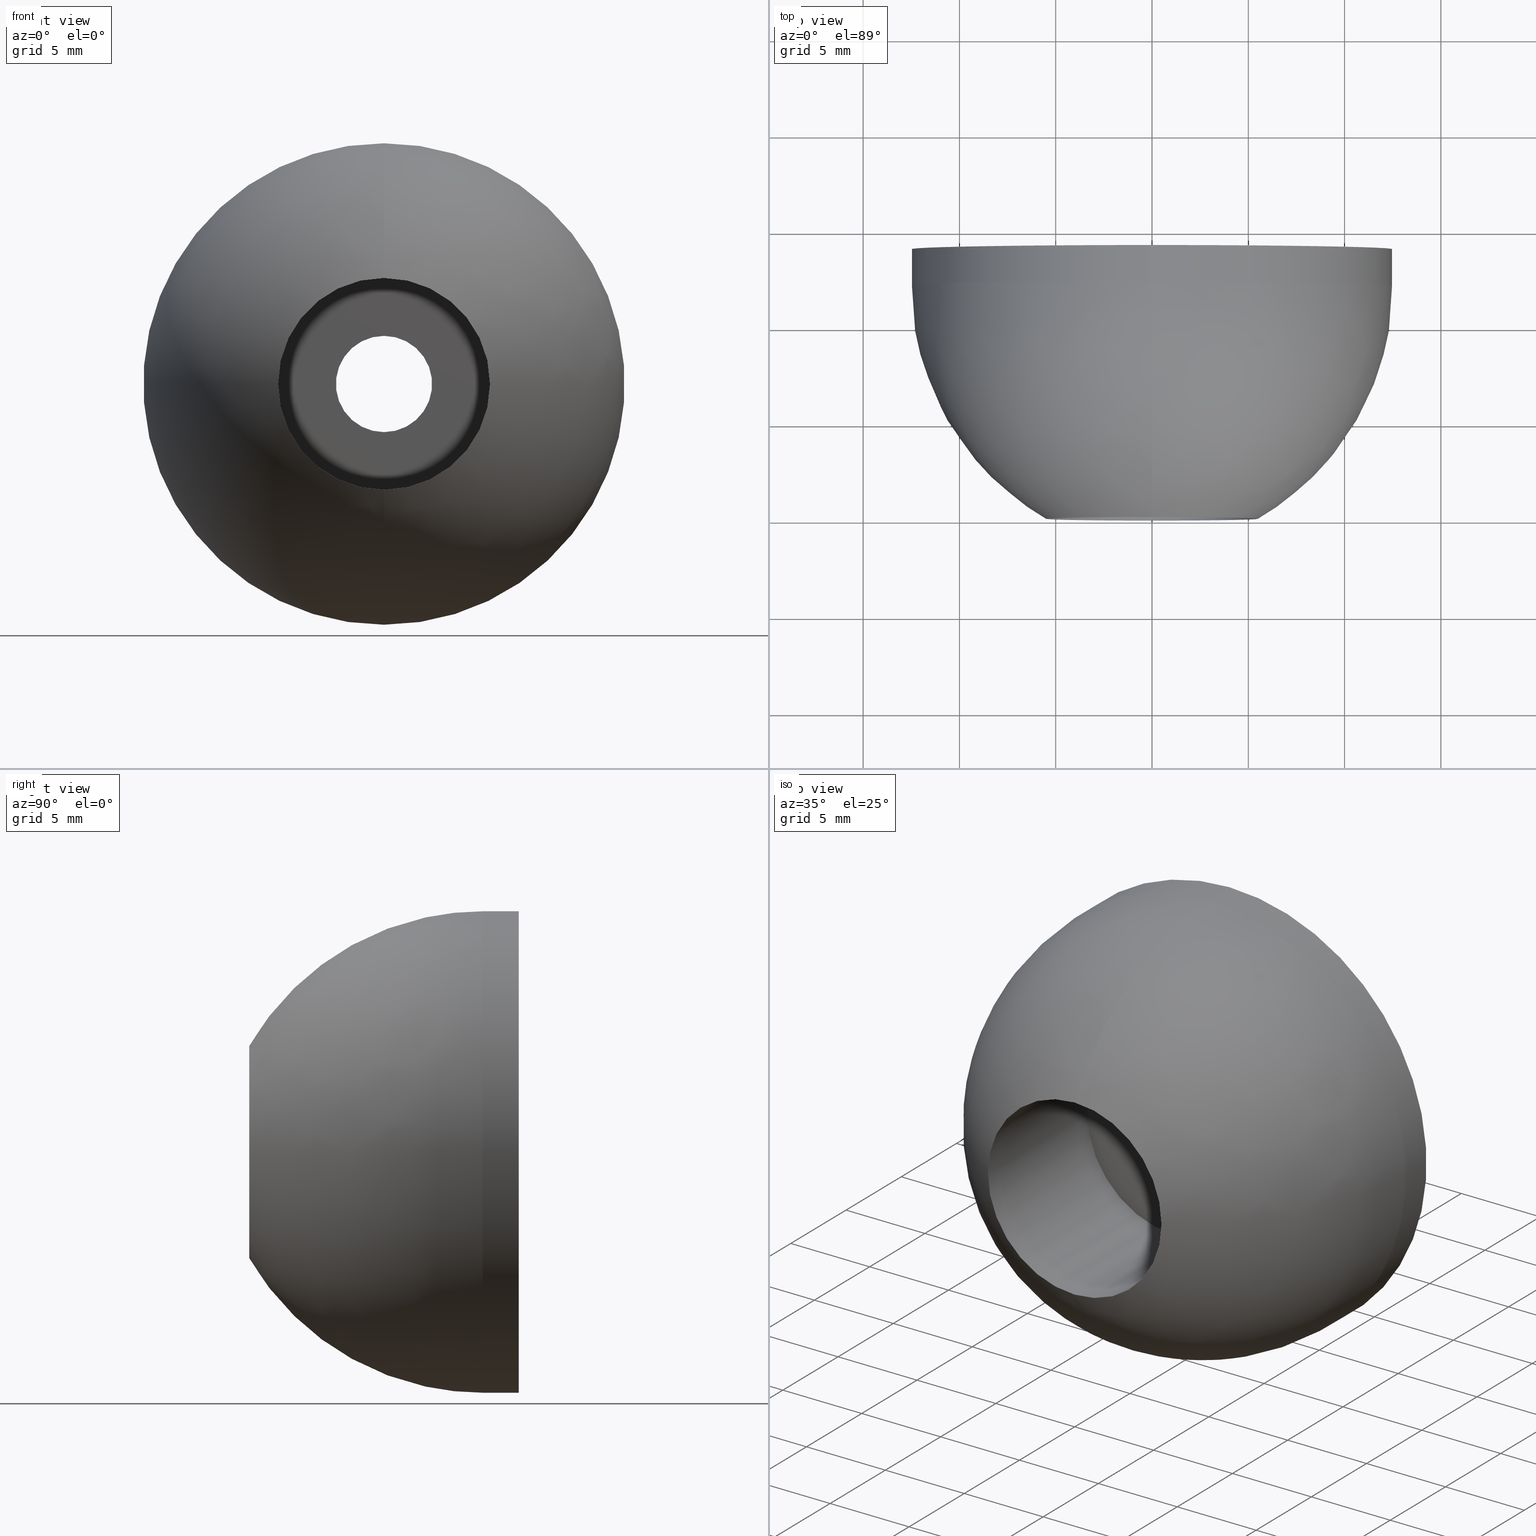
[diagram: canonical four-view strip — front | top / right | iso, engineering-drawing reading convention]
A machine part, canonical four-view strip (front | top / right | iso — engineering-drawing reading convention). The complete STEP part file that produces these views, byte-faithful:
ISO-10303-21;
HEADER;

FILE_DESCRIPTION( (''), '2;1');
FILE_NAME ('PC50.8404.TM_SK_2519_14057.stp','2019-12-20T12:49:41',(''),(''),'spGate 15.6.1','','');

FILE_SCHEMA (('AUTOMOTIVE_DESIGN'));
ENDSEC;

DATA;
#10=(GEOMETRIC_REPRESENTATION_CONTEXT(3) GLOBAL_UNCERTAINTY_ASSIGNED_CONTEXT((#12)) GLOBAL_UNIT_ASSIGNED_CONTEXT((#13,#14,#15)) REPRESENTATION_CONTEXT('ID1','3D'));
#12=UNCERTAINTY_MEASURE_WITH_UNIT(LENGTH_MEASURE(0.01),#16,'DISTANCE_ACCURACY_VALUE','Maximum model space distance between geometric entities at asserted connectivities');
#13=(NAMED_UNIT(*) SI_UNIT($,.STERADIAN.) SOLID_ANGLE_UNIT());
#14=(CONVERSION_BASED_UNIT('DEGREE',#35) NAMED_UNIT(#36) PLANE_ANGLE_UNIT());
#15=(LENGTH_UNIT() NAMED_UNIT(*) SI_UNIT(.MILLI.,.METRE.));
#16=(LENGTH_UNIT() NAMED_UNIT(*) SI_UNIT(.MILLI.,.METRE.));
#17=AXIS2_PLACEMENT_3D('',#38,#39,#40);
#18=AXIS2_PLACEMENT_3D('',#41,#42,#43);
#19=PRODUCT_DEFINITION('','',#48,#49);
#20=AXIS2_PLACEMENT_3D('',#50,#51,#52);
#21=AXIS2_PLACEMENT_3D('',#53,#54,#55);
#22=SHAPE_REPRESENTATION('Assembly',(#18,#20,#21),#10);
#23=AXIS2_PLACEMENT_3D('',#58,#59,#60);
#24=PRODUCT_DEFINITION('','',#65,#66);
#25=SHAPE_REPRESENTATION('rubber foot',(#23),#10);
#26=ITEM_DEFINED_TRANSFORMATION('','',#20,#23);
#27=(REPRESENTATION_RELATIONSHIP('','',#22,#25) REPRESENTATION_RELATIONSHIP_WITH_TRANSFORMATION(#26) SHAPE_REPRESENTATION_RELATIONSHIP());
#29=AXIS2_PLACEMENT_3D('',#73,#74,#75);
#30=PRODUCT_DEFINITION('','',#80,#81);
#31=SHAPE_REPRESENTATION('washer',(#29),#10);
#32=ITEM_DEFINED_TRANSFORMATION('','',#21,#29);
#33=(REPRESENTATION_RELATIONSHIP('','',#22,#31) REPRESENTATION_RELATIONSHIP_WITH_TRANSFORMATION(#32) SHAPE_REPRESENTATION_RELATIONSHIP());
#35=PLANE_ANGLE_MEASURE_WITH_UNIT(PLANE_ANGLE_MEASURE(0.01745329252),#37);
#36=DIMENSIONAL_EXPONENTS(0.0,0.0,0.0,0.0,0.0,0.0,0.0);
#37=(NAMED_UNIT(*) PLANE_ANGLE_UNIT() SI_UNIT($,.RADIAN.));
#38=CARTESIAN_POINT('',(0.00000000000E+000,0.00000000000E+000,0.00000000000E+000));
#39=DIRECTION('',(0.00000000000E+000,0.00000000000E+000,1.00000000000E+000));
#40=DIRECTION('',(1.00000000000E+000,0.00000000000E+000,0.00000000000E+000));
#41=CARTESIAN_POINT('',(0.00000000000E+000,0.00000000000E+000,0.00000000000E+000));
#42=DIRECTION('',(0.00000000000E+000,0.00000000000E+000,1.00000000000E+000));
#43=DIRECTION('',(1.00000000000E+000,0.00000000000E+000,0.00000000000E+000));
#44=APPLICATION_CONTEXT('configuration controlled 3d designs of mechanical parts and assemblies');
#45=APPLICATION_PROTOCOL_DEFINITION('International Standard','automotive_design',1999,#44);
#46=PRODUCT_CONTEXT('',#44,'');
#47=PRODUCT('Assembly','Assembly','',(#46));
#48=PRODUCT_DEFINITION_FORMATION_WITH_SPECIFIED_SOURCE('','',#47,.NOT_KNOWN.);
#49=PRODUCT_DEFINITION_CONTEXT('design',#44,'');
#50=CARTESIAN_POINT('',(0.00000000000E+000,0.00000000000E+000,0.00000000000E+000));
#51=DIRECTION('',(0.00000000000E+000,0.00000000000E+000,1.00000000000E+000));
#52=DIRECTION('',(1.00000000000E+000,0.00000000000E+000,0.00000000000E+000));
#53=CARTESIAN_POINT('',(0.00000000000E+000,0.00000000000E+000,0.00000000000E+000));
#54=DIRECTION('',(0.00000000000E+000,0.00000000000E+000,1.00000000000E+000));
#55=DIRECTION('',(1.00000000000E+000,0.00000000000E+000,0.00000000000E+000));
#56=PRODUCT_DEFINITION_SHAPE('','',#19);
#57=SHAPE_DEFINITION_REPRESENTATION(#56,#22);
#58=CARTESIAN_POINT('',(0.00000000000E+000,0.00000000000E+000,0.00000000000E+000));
#59=DIRECTION('',(0.00000000000E+000,0.00000000000E+000,1.00000000000E+000));
#60=DIRECTION('',(1.00000000000E+000,0.00000000000E+000,0.00000000000E+000));
#61=APPLICATION_CONTEXT('configuration controlled 3d designs of mechanical parts and assemblies');
#62=APPLICATION_PROTOCOL_DEFINITION('International Standard','automotive_design',1999,#61);
#63=PRODUCT_CONTEXT('',#61,'');
#64=PRODUCT('rubber foot','rubber foot','',(#63));
#65=PRODUCT_DEFINITION_FORMATION_WITH_SPECIFIED_SOURCE('','',#64,.NOT_KNOWN.);
#66=PRODUCT_DEFINITION_CONTEXT('design',#61,'');
#67=PRODUCT_DEFINITION_SHAPE('','',#24);
#68=SHAPE_DEFINITION_REPRESENTATION(#67,#25);
#69=NEXT_ASSEMBLY_USAGE_OCCURRENCE('','','',#19,#24,'');
#70=PRODUCT_DEFINITION_SHAPE('','',#69);
#71=CONTEXT_DEPENDENT_SHAPE_REPRESENTATION(#27,#70);
#73=CARTESIAN_POINT('',(0.00000000000E+000,0.00000000000E+000,0.00000000000E+000));
#74=DIRECTION('',(0.00000000000E+000,0.00000000000E+000,1.00000000000E+000));
#75=DIRECTION('',(1.00000000000E+000,0.00000000000E+000,0.00000000000E+000));
#76=APPLICATION_CONTEXT('configuration controlled 3d designs of mechanical parts and assemblies');
#77=APPLICATION_PROTOCOL_DEFINITION('International Standard','automotive_design',1999,#76);
#78=PRODUCT_CONTEXT('',#76,'');
#79=PRODUCT('washer','washer','',(#78));
#80=PRODUCT_DEFINITION_FORMATION_WITH_SPECIFIED_SOURCE('','',#79,.NOT_KNOWN.);
#81=PRODUCT_DEFINITION_CONTEXT('design',#76,'');
#82=PRODUCT_DEFINITION_SHAPE('','',#30);
#83=SHAPE_DEFINITION_REPRESENTATION(#82,#31);
#84=NEXT_ASSEMBLY_USAGE_OCCURRENCE('','','',#19,#30,'');
#85=PRODUCT_DEFINITION_SHAPE('','',#84);
#86=CONTEXT_DEPENDENT_SHAPE_REPRESENTATION(#33,#85);
#88=SHAPE_REPRESENTATION_RELATIONSHIP('','',#25,#91);
#89=SHAPE_REPRESENTATION_RELATIONSHIP('','',#31,#93);
#90=MANIFOLD_SOLID_BREP('rubber foot',#94);
#91=ADVANCED_BREP_SHAPE_REPRESENTATION('rubber foot',(#90),#10);
#92=MANIFOLD_SOLID_BREP('washer',#103);
#93=ADVANCED_BREP_SHAPE_REPRESENTATION('washer',(#92),#10);
#94=CLOSED_SHELL('',(#112,#113,#114,#115,#116,#117,#118,#119,#120,#121,#122,#123,#124));
#95=COLOUR_RGB('',0.00000000000E+000,0.00000000000E+000,0.00000000000E+000);
#96=FILL_AREA_STYLE_COLOUR('',#95);
#97=FILL_AREA_STYLE('',(#96));
#98=SURFACE_STYLE_FILL_AREA(#97);
#99=SURFACE_SIDE_STYLE('',(#98));
#100=SURFACE_STYLE_USAGE(.BOTH.,#99);
#101=PRESENTATION_STYLE_ASSIGNMENT((#100));
#102=STYLED_ITEM('',(#101),#90);
#103=CLOSED_SHELL('',(#125,#126,#127,#128,#129,#130));
#104=COLOUR_RGB('',0.00000000000E+000,0.00000000000E+000,0.00000000000E+000);
#105=FILL_AREA_STYLE_COLOUR('',#104);
#106=FILL_AREA_STYLE('',(#105));
#107=SURFACE_STYLE_FILL_AREA(#106);
#108=SURFACE_SIDE_STYLE('',(#107));
#109=SURFACE_STYLE_USAGE(.BOTH.,#108);
#110=PRESENTATION_STYLE_ASSIGNMENT((#109));
#111=STYLED_ITEM('',(#110),#92);
#112=ADVANCED_FACE('',(#132,#133),#131,.F.);
#113=ADVANCED_FACE('',(#143,#144),#142,.F.);
#114=ADVANCED_FACE('',(#154,#155),#153,.F.);
#115=ADVANCED_FACE('',(#165),#164,.T.);
#116=ADVANCED_FACE('',(#175),#174,.T.);
#117=ADVANCED_FACE('',(#185),#184,.T.);
#118=ADVANCED_FACE('',(#195),#194,.T.);
#119=ADVANCED_FACE('',(#205),#204,.F.);
#120=ADVANCED_FACE('',(#215),#214,.F.);
#121=ADVANCED_FACE('',(#225),#224,.F.);
#122=ADVANCED_FACE('',(#235),#234,.F.);
#123=ADVANCED_FACE('',(#245),#244,.F.);
#124=ADVANCED_FACE('',(#255),#254,.F.);
#125=ADVANCED_FACE('',(#265,#266),#264,.F.);
#126=ADVANCED_FACE('',(#276,#277),#275,.T.);
#127=ADVANCED_FACE('',(#287),#286,.T.);
#128=ADVANCED_FACE('',(#297),#296,.T.);
#129=ADVANCED_FACE('',(#307),#306,.F.);
#130=ADVANCED_FACE('',(#317),#316,.F.);
#131=PLANE('',#329);
#132=FACE_OUTER_BOUND('',#330,.T.);
#133=FACE_BOUND('',#331,.T.);
#134=COLOUR_RGB('',1.00000000000E+000,1.00000000000E+000,1.00000000000E+000);
#135=FILL_AREA_STYLE_COLOUR('',#134);
#136=FILL_AREA_STYLE('',(#135));
#137=SURFACE_STYLE_FILL_AREA(#136);
#138=SURFACE_SIDE_STYLE('',(#137));
#139=SURFACE_STYLE_USAGE(.BOTH.,#138);
#140=PRESENTATION_STYLE_ASSIGNMENT((#139));
#141=STYLED_ITEM('',(#140),#112);
#142=PLANE('',#335);
#143=FACE_OUTER_BOUND('',#336,.T.);
#144=FACE_BOUND('',#337,.T.);
#145=COLOUR_RGB('',1.00000000000E+000,1.00000000000E+000,1.00000000000E+000);
#146=FILL_AREA_STYLE_COLOUR('',#145);
#147=FILL_AREA_STYLE('',(#146));
#148=SURFACE_STYLE_FILL_AREA(#147);
#149=SURFACE_SIDE_STYLE('',(#148));
#150=SURFACE_STYLE_USAGE(.BOTH.,#149);
#151=PRESENTATION_STYLE_ASSIGNMENT((#150));
#152=STYLED_ITEM('',(#151),#113);
#153=PLANE('',#341);
#154=FACE_OUTER_BOUND('',#342,.T.);
#155=FACE_BOUND('',#343,.T.);
#156=COLOUR_RGB('',1.00000000000E+000,1.00000000000E+000,1.00000000000E+000);
#157=FILL_AREA_STYLE_COLOUR('',#156);
#158=FILL_AREA_STYLE('',(#157));
#159=SURFACE_STYLE_FILL_AREA(#158);
#160=SURFACE_SIDE_STYLE('',(#159));
#161=SURFACE_STYLE_USAGE(.BOTH.,#160);
#162=PRESENTATION_STYLE_ASSIGNMENT((#161));
#163=STYLED_ITEM('',(#162),#114);
#164=CYLINDRICAL_SURFACE('',#347,1.25000000000E+001);
#165=FACE_OUTER_BOUND('',#348,.T.);
#166=COLOUR_RGB('',1.00000000000E+000,1.00000000000E+000,1.00000000000E+000);
#167=FILL_AREA_STYLE_COLOUR('',#166);
#168=FILL_AREA_STYLE('',(#167));
#169=SURFACE_STYLE_FILL_AREA(#168);
#170=SURFACE_SIDE_STYLE('',(#169));
#171=SURFACE_STYLE_USAGE(.BOTH.,#170);
#172=PRESENTATION_STYLE_ASSIGNMENT((#171));
#173=STYLED_ITEM('',(#172),#115);
#174=CYLINDRICAL_SURFACE('',#352,1.25000000000E+001);
#175=FACE_OUTER_BOUND('',#353,.T.);
#176=COLOUR_RGB('',1.00000000000E+000,1.00000000000E+000,1.00000000000E+000);
#177=FILL_AREA_STYLE_COLOUR('',#176);
#178=FILL_AREA_STYLE('',(#177));
#179=SURFACE_STYLE_FILL_AREA(#178);
#180=SURFACE_SIDE_STYLE('',(#179));
#181=SURFACE_STYLE_USAGE(.BOTH.,#180);
#182=PRESENTATION_STYLE_ASSIGNMENT((#181));
#183=STYLED_ITEM('',(#182),#116);
#184=( BOUNDED_SURFACE() B_SPLINE_SURFACE( 2,2,((#354,#355,#356,#357,#358),(#359,#360,#361,#362,#363),(#364,#365,#366,#367,#368)), .UNSPECIFIED.,.F.,.F.,.F.) B_SPLINE_SURFACE_WITH_KNOTS((3,3),(3,2,3),(-1.04719755120E+000,0.00000000000E+000),(0.00000000000E+000,1.57079632679E+000,3.14159265359E+000), .UNSPECIFIED. ) GEOMETRIC_REPRESENTATION_ITEM() RATIONAL_B_SPLINE_SURFACE(((1.00000000000E+000,7.07106781187E-001,1.00000000000E+000,7.07106781187E-001,1.00000000000E+000),(8.66025403784E-001,6.12372435696E-001,8.66025403784E-001,6.12372435696E-001,8.66025403784E-001),(1.00000000000E+000,7.07106781187E-001,1.00000000000E+000,7.07106781187E-001,1.00000000000E+000))) REPRESENTATION_ITEM('') SURFACE() );
#185=FACE_OUTER_BOUND('',#369,.T.);
#186=COLOUR_RGB('',1.00000000000E+000,1.00000000000E+000,1.00000000000E+000);
#187=FILL_AREA_STYLE_COLOUR('',#186);
#188=FILL_AREA_STYLE('',(#187));
#189=SURFACE_STYLE_FILL_AREA(#188);
#190=SURFACE_SIDE_STYLE('',(#189));
#191=SURFACE_STYLE_USAGE(.BOTH.,#190);
#192=PRESENTATION_STYLE_ASSIGNMENT((#191));
#193=STYLED_ITEM('',(#192),#117);
#194=( BOUNDED_SURFACE() B_SPLINE_SURFACE( 2,2,((#370,#371,#372,#373,#374),(#375,#376,#377,#378,#379),(#380,#381,#382,#383,#384)), .UNSPECIFIED.,.F.,.F.,.F.) B_SPLINE_SURFACE_WITH_KNOTS((3,3),(3,2,3),(-1.04719755120E+000,0.00000000000E+000),(3.14159265359E+000,4.71238898038E+000,6.28318530718E+000), .UNSPECIFIED. ) GEOMETRIC_REPRESENTATION_ITEM() RATIONAL_B_SPLINE_SURFACE(((1.00000000000E+000,7.07106781187E-001,1.00000000000E+000,7.07106781187E-001,1.00000000000E+000),(8.66025403784E-001,6.12372435696E-001,8.66025403784E-001,6.12372435696E-001,8.66025403784E-001),(1.00000000000E+000,7.07106781187E-001,1.00000000000E+000,7.07106781187E-001,1.00000000000E+000))) REPRESENTATION_ITEM('') SURFACE() );
#195=FACE_OUTER_BOUND('',#385,.T.);
#196=COLOUR_RGB('',1.00000000000E+000,1.00000000000E+000,1.00000000000E+000);
#197=FILL_AREA_STYLE_COLOUR('',#196);
#198=FILL_AREA_STYLE('',(#197));
#199=SURFACE_STYLE_FILL_AREA(#198);
#200=SURFACE_SIDE_STYLE('',(#199));
#201=SURFACE_STYLE_USAGE(.BOTH.,#200);
#202=PRESENTATION_STYLE_ASSIGNMENT((#201));
#203=STYLED_ITEM('',(#202),#118);
#204=CYLINDRICAL_SURFACE('',#389,2.50000000000E+000);
#205=FACE_OUTER_BOUND('',#390,.T.);
#206=COLOUR_RGB('',1.00000000000E+000,1.00000000000E+000,1.00000000000E+000);
#207=FILL_AREA_STYLE_COLOUR('',#206);
#208=FILL_AREA_STYLE('',(#207));
#209=SURFACE_STYLE_FILL_AREA(#208);
#210=SURFACE_SIDE_STYLE('',(#209));
#211=SURFACE_STYLE_USAGE(.BOTH.,#210);
#212=PRESENTATION_STYLE_ASSIGNMENT((#211));
#213=STYLED_ITEM('',(#212),#119);
#214=CYLINDRICAL_SURFACE('',#394,2.50000000000E+000);
#215=FACE_OUTER_BOUND('',#395,.T.);
#216=COLOUR_RGB('',1.00000000000E+000,1.00000000000E+000,1.00000000000E+000);
#217=FILL_AREA_STYLE_COLOUR('',#216);
#218=FILL_AREA_STYLE('',(#217));
#219=SURFACE_STYLE_FILL_AREA(#218);
#220=SURFACE_SIDE_STYLE('',(#219));
#221=SURFACE_STYLE_USAGE(.BOTH.,#220);
#222=PRESENTATION_STYLE_ASSIGNMENT((#221));
#223=STYLED_ITEM('',(#222),#120);
#224=CYLINDRICAL_SURFACE('',#399,7.00000000000E+000);
#225=FACE_OUTER_BOUND('',#400,.T.);
#226=COLOUR_RGB('',1.00000000000E+000,1.00000000000E+000,1.00000000000E+000);
#227=FILL_AREA_STYLE_COLOUR('',#226);
#228=FILL_AREA_STYLE('',(#227));
#229=SURFACE_STYLE_FILL_AREA(#228);
#230=SURFACE_SIDE_STYLE('',(#229));
#231=SURFACE_STYLE_USAGE(.BOTH.,#230);
#232=PRESENTATION_STYLE_ASSIGNMENT((#231));
#233=STYLED_ITEM('',(#232),#121);
#234=CYLINDRICAL_SURFACE('',#404,7.00000000000E+000);
#235=FACE_OUTER_BOUND('',#405,.T.);
#236=COLOUR_RGB('',1.00000000000E+000,1.00000000000E+000,1.00000000000E+000);
#237=FILL_AREA_STYLE_COLOUR('',#236);
#238=FILL_AREA_STYLE('',(#237));
#239=SURFACE_STYLE_FILL_AREA(#238);
#240=SURFACE_SIDE_STYLE('',(#239));
#241=SURFACE_STYLE_USAGE(.BOTH.,#240);
#242=PRESENTATION_STYLE_ASSIGNMENT((#241));
#243=STYLED_ITEM('',(#242),#122);
#244=CYLINDRICAL_SURFACE('',#409,5.50000000000E+000);
#245=FACE_OUTER_BOUND('',#410,.T.);
#246=COLOUR_RGB('',1.00000000000E+000,1.00000000000E+000,1.00000000000E+000);
#247=FILL_AREA_STYLE_COLOUR('',#246);
#248=FILL_AREA_STYLE('',(#247));
#249=SURFACE_STYLE_FILL_AREA(#248);
#250=SURFACE_SIDE_STYLE('',(#249));
#251=SURFACE_STYLE_USAGE(.BOTH.,#250);
#252=PRESENTATION_STYLE_ASSIGNMENT((#251));
#253=STYLED_ITEM('',(#252),#123);
#254=CYLINDRICAL_SURFACE('',#414,5.50000000000E+000);
#255=FACE_OUTER_BOUND('',#415,.T.);
#256=COLOUR_RGB('',1.00000000000E+000,1.00000000000E+000,1.00000000000E+000);
#257=FILL_AREA_STYLE_COLOUR('',#256);
#258=FILL_AREA_STYLE('',(#257));
#259=SURFACE_STYLE_FILL_AREA(#258);
#260=SURFACE_SIDE_STYLE('',(#259));
#261=SURFACE_STYLE_USAGE(.BOTH.,#260);
#262=PRESENTATION_STYLE_ASSIGNMENT((#261));
#263=STYLED_ITEM('',(#262),#124);
#264=PLANE('',#419);
#265=FACE_OUTER_BOUND('',#420,.T.);
#266=FACE_BOUND('',#421,.T.);
#267=COLOUR_RGB('',1.00000000000E+000,1.00000000000E+000,1.00000000000E+000);
#268=FILL_AREA_STYLE_COLOUR('',#267);
#269=FILL_AREA_STYLE('',(#268));
#270=SURFACE_STYLE_FILL_AREA(#269);
#271=SURFACE_SIDE_STYLE('',(#270));
#272=SURFACE_STYLE_USAGE(.BOTH.,#271);
#273=PRESENTATION_STYLE_ASSIGNMENT((#272));
#274=STYLED_ITEM('',(#273),#125);
#275=PLANE('',#425);
#276=FACE_OUTER_BOUND('',#426,.T.);
#277=FACE_BOUND('',#427,.T.);
#278=COLOUR_RGB('',1.00000000000E+000,1.00000000000E+000,1.00000000000E+000);
#279=FILL_AREA_STYLE_COLOUR('',#278);
#280=FILL_AREA_STYLE('',(#279));
#281=SURFACE_STYLE_FILL_AREA(#280);
#282=SURFACE_SIDE_STYLE('',(#281));
#283=SURFACE_STYLE_USAGE(.BOTH.,#282);
#284=PRESENTATION_STYLE_ASSIGNMENT((#283));
#285=STYLED_ITEM('',(#284),#126);
#286=CYLINDRICAL_SURFACE('',#431,7.00000000000E+000);
#287=FACE_OUTER_BOUND('',#432,.T.);
#288=COLOUR_RGB('',1.00000000000E+000,1.00000000000E+000,1.00000000000E+000);
#289=FILL_AREA_STYLE_COLOUR('',#288);
#290=FILL_AREA_STYLE('',(#289));
#291=SURFACE_STYLE_FILL_AREA(#290);
#292=SURFACE_SIDE_STYLE('',(#291));
#293=SURFACE_STYLE_USAGE(.BOTH.,#292);
#294=PRESENTATION_STYLE_ASSIGNMENT((#293));
#295=STYLED_ITEM('',(#294),#127);
#296=CYLINDRICAL_SURFACE('',#436,7.00000000000E+000);
#297=FACE_OUTER_BOUND('',#437,.T.);
#298=COLOUR_RGB('',1.00000000000E+000,1.00000000000E+000,1.00000000000E+000);
#299=FILL_AREA_STYLE_COLOUR('',#298);
#300=FILL_AREA_STYLE('',(#299));
#301=SURFACE_STYLE_FILL_AREA(#300);
#302=SURFACE_SIDE_STYLE('',(#301));
#303=SURFACE_STYLE_USAGE(.BOTH.,#302);
#304=PRESENTATION_STYLE_ASSIGNMENT((#303));
#305=STYLED_ITEM('',(#304),#128);
#306=CYLINDRICAL_SURFACE('',#441,2.50000000000E+000);
#307=FACE_OUTER_BOUND('',#442,.T.);
#308=COLOUR_RGB('',1.00000000000E+000,1.00000000000E+000,1.00000000000E+000);
#309=FILL_AREA_STYLE_COLOUR('',#308);
#310=FILL_AREA_STYLE('',(#309));
#311=SURFACE_STYLE_FILL_AREA(#310);
#312=SURFACE_SIDE_STYLE('',(#311));
#313=SURFACE_STYLE_USAGE(.BOTH.,#312);
#314=PRESENTATION_STYLE_ASSIGNMENT((#313));
#315=STYLED_ITEM('',(#314),#129);
#316=CYLINDRICAL_SURFACE('',#446,2.50000000000E+000);
#317=FACE_OUTER_BOUND('',#447,.T.);
#318=COLOUR_RGB('',1.00000000000E+000,1.00000000000E+000,1.00000000000E+000);
#319=FILL_AREA_STYLE_COLOUR('',#318);
#320=FILL_AREA_STYLE('',(#319));
#321=SURFACE_STYLE_FILL_AREA(#320);
#322=SURFACE_SIDE_STYLE('',(#321));
#323=SURFACE_STYLE_USAGE(.BOTH.,#322);
#324=PRESENTATION_STYLE_ASSIGNMENT((#323));
#325=STYLED_ITEM('',(#324),#130);
#326=CARTESIAN_POINT('',(-1.45492267836E+001,9.80000000000E+000,-1.61000000000E+001));
#327=DIRECTION('',(0.00000000000E+000,1.00000000000E+000,0.00000000000E+000));
#328=DIRECTION('',(0.00000000000E+000,-0.00000000000E+000,1.00000000000E+000));
#329=AXIS2_PLACEMENT_3D('',#326,#327,#328);
#330=EDGE_LOOP('',(#448,#449));
#331=EDGE_LOOP('',(#450,#451));
#332=CARTESIAN_POINT('',(-1.45492267836E+001,9.00000000000E+000,1.61000000000E+001));
#333=DIRECTION('',(0.00000000000E+000,-1.00000000000E+000,0.00000000000E+000));
#334=DIRECTION('',(0.00000000000E+000,0.00000000000E+000,-1.00000000000E+000));
#335=AXIS2_PLACEMENT_3D('',#332,#333,#334);
#336=EDGE_LOOP('',(#452,#453));
#337=EDGE_LOOP('',(#454,#455));
#338=CARTESIAN_POINT('',(-2.59807621135E+001,1.40000000000E+001,2.87500000000E+001));
#339=DIRECTION('',(0.00000000000E+000,-1.00000000000E+000,0.00000000000E+000));
#340=DIRECTION('',(0.00000000000E+000,0.00000000000E+000,-1.00000000000E+000));
#341=AXIS2_PLACEMENT_3D('',#338,#339,#340);
#342=EDGE_LOOP('',(#456,#457));
#343=EDGE_LOOP('',(#458,#459));
#344=CARTESIAN_POINT('',(0.00000000000E+000,1.30621776581E+001,0.00000000000E+000));
#345=DIRECTION('',(0.00000000000E+000,-1.00000000000E+000,-0.00000000000E+000));
#346=DIRECTION('',(1.22464679915E-016,0.00000000000E+000,1.00000000000E+000));
#347=AXIS2_PLACEMENT_3D('',#344,#345,#346);
#348=EDGE_LOOP('',(#460,#461,#462,#463));
#349=CARTESIAN_POINT('',(0.00000000000E+000,1.30621776581E+001,0.00000000000E+000));
#350=DIRECTION('',(0.00000000000E+000,-1.00000000000E+000,-0.00000000000E+000));
#351=DIRECTION('',(1.22464679915E-016,0.00000000000E+000,1.00000000000E+000));
#352=AXIS2_PLACEMENT_3D('',#349,#350,#351);
#353=EDGE_LOOP('',(#464,#465,#466,#467));
#354=CARTESIAN_POINT('',(2.30627420373E-015,5.15143483426E-014,-5.49999999999E+000));
#355=CARTESIAN_POINT('',(5.49999999999E+000,5.15143483426E-014,-5.49999999999E+000));
#356=CARTESIAN_POINT('',(5.49999999999E+000,5.15143483426E-014,-1.06118998138E-015));
#357=CARTESIAN_POINT('',(5.49999999999E+000,5.15143483426E-014,5.49999999999E+000));
#358=CARTESIAN_POINT('',(9.59207214527E-016,5.15143483426E-014,5.49999999999E+000));
#359=CARTESIAN_POINT('',(3.16349865141E-015,4.04145188433E+000,-1.25000000000E+001));
#360=CARTESIAN_POINT('',(1.25000000000E+001,4.04145188433E+000,-1.25000000000E+001));
#361=CARTESIAN_POINT('',(1.25000000000E+001,4.04145188433E+000,-2.03965533698E-016));
#362=CARTESIAN_POINT('',(1.25000000000E+001,4.04145188433E+000,1.25000000000E+001));
#363=CARTESIAN_POINT('',(1.01982766850E-016,4.04145188433E+000,1.25000000000E+001));
#364=CARTESIAN_POINT('',(3.16349865141E-015,1.21243556530E+001,-1.25000000000E+001));
#365=CARTESIAN_POINT('',(1.25000000000E+001,1.21243556530E+001,-1.25000000000E+001));
#366=CARTESIAN_POINT('',(1.25000000000E+001,1.21243556530E+001,-2.03965533698E-016));
#367=CARTESIAN_POINT('',(1.25000000000E+001,1.21243556530E+001,1.25000000000E+001));
#368=CARTESIAN_POINT('',(1.01982766850E-016,1.21243556530E+001,1.25000000000E+001));
#369=EDGE_LOOP('',(#468,#469,#470,#471));
#370=CARTESIAN_POINT('',(9.59207214527E-016,5.15143483426E-014,5.49999999999E+000));
#371=CARTESIAN_POINT('',(-5.49999999999E+000,5.15143483426E-014,5.49999999999E+000));
#372=CARTESIAN_POINT('',(-5.49999999999E+000,5.15143483426E-014,-2.40825697058E-015));
#373=CARTESIAN_POINT('',(-5.49999999999E+000,5.15143483426E-014,-5.49999999999E+000));
#374=CARTESIAN_POINT('',(2.30627420373E-015,5.15143483426E-014,-5.49999999999E+000));
#375=CARTESIAN_POINT('',(1.01982766850E-016,4.04145188433E+000,1.25000000000E+001));
#376=CARTESIAN_POINT('',(-1.25000000000E+001,4.04145188433E+000,1.25000000000E+001));
#377=CARTESIAN_POINT('',(-1.25000000000E+001,4.04145188433E+000,-3.26548141826E-015));
#378=CARTESIAN_POINT('',(-1.25000000000E+001,4.04145188433E+000,-1.25000000000E+001));
#379=CARTESIAN_POINT('',(3.16349865141E-015,4.04145188433E+000,-1.25000000000E+001));
#380=CARTESIAN_POINT('',(1.01982766850E-016,1.21243556530E+001,1.25000000000E+001));
#381=CARTESIAN_POINT('',(-1.25000000000E+001,1.21243556530E+001,1.25000000000E+001));
#382=CARTESIAN_POINT('',(-1.25000000000E+001,1.21243556530E+001,-3.26548141826E-015));
#383=CARTESIAN_POINT('',(-1.25000000000E+001,1.21243556530E+001,-1.25000000000E+001));
#384=CARTESIAN_POINT('',(3.16349865141E-015,1.21243556530E+001,-1.25000000000E+001));
#385=EDGE_LOOP('',(#472,#473,#474,#475));
#386=CARTESIAN_POINT('',(0.00000000000E+000,1.19000000954E+001,0.00000000000E+000));
#387=DIRECTION('',(0.00000000000E+000,-1.00000000000E+000,-0.00000000000E+000));
#388=DIRECTION('',(-0.00000000000E+000,0.00000000000E+000,-1.00000000000E+000));
#389=AXIS2_PLACEMENT_3D('',#386,#387,#388);
#390=EDGE_LOOP('',(#476,#477,#478,#479));
#391=CARTESIAN_POINT('',(0.00000000000E+000,1.19000000954E+001,0.00000000000E+000));
#392=DIRECTION('',(0.00000000000E+000,-1.00000000000E+000,-0.00000000000E+000));
#393=DIRECTION('',(-0.00000000000E+000,0.00000000000E+000,-1.00000000000E+000));
#394=AXIS2_PLACEMENT_3D('',#391,#392,#393);
#395=EDGE_LOOP('',(#480,#481,#482,#483));
#396=CARTESIAN_POINT('',(0.00000000000E+000,9.40000009537E+000,0.00000000000E+000));
#397=DIRECTION('',(0.00000000000E+000,-1.00000000000E+000,-0.00000000000E+000));
#398=DIRECTION('',(-0.00000000000E+000,0.00000000000E+000,-1.00000000000E+000));
#399=AXIS2_PLACEMENT_3D('',#396,#397,#398);
#400=EDGE_LOOP('',(#484,#485,#486,#487));
#401=CARTESIAN_POINT('',(0.00000000000E+000,9.40000009537E+000,0.00000000000E+000));
#402=DIRECTION('',(0.00000000000E+000,-1.00000000000E+000,-0.00000000000E+000));
#403=DIRECTION('',(-0.00000000000E+000,0.00000000000E+000,-1.00000000000E+000));
#404=AXIS2_PLACEMENT_3D('',#401,#402,#403);
#405=EDGE_LOOP('',(#488,#489,#490,#491));
#406=CARTESIAN_POINT('',(0.00000000000E+000,4.50000000000E+000,0.00000000000E+000));
#407=DIRECTION('',(0.00000000000E+000,-1.00000000000E+000,-0.00000000000E+000));
#408=DIRECTION('',(-0.00000000000E+000,0.00000000000E+000,-1.00000000000E+000));
#409=AXIS2_PLACEMENT_3D('',#406,#407,#408);
#410=EDGE_LOOP('',(#492,#493,#494,#495));
#411=CARTESIAN_POINT('',(0.00000000000E+000,4.50000000000E+000,0.00000000000E+000));
#412=DIRECTION('',(0.00000000000E+000,-1.00000000000E+000,-0.00000000000E+000));
#413=DIRECTION('',(-0.00000000000E+000,0.00000000000E+000,-1.00000000000E+000));
#414=AXIS2_PLACEMENT_3D('',#411,#412,#413);
#415=EDGE_LOOP('',(#496,#497,#498,#499));
#416=CARTESIAN_POINT('',(-1.45492267836E+001,9.00000000000E+000,-9.10000000000E+000));
#417=DIRECTION('',(-0.00000000000E+000,1.00000000000E+000,0.00000000000E+000));
#418=DIRECTION('',(0.00000000000E+000,0.00000000000E+000,1.00000000000E+000));
#419=AXIS2_PLACEMENT_3D('',#416,#417,#418);
#420=EDGE_LOOP('',(#500,#501));
#421=EDGE_LOOP('',(#502,#503));
#422=CARTESIAN_POINT('',(-1.45492267836E+001,9.80000000000E+000,-1.61000000000E+001));
#423=DIRECTION('',(-0.00000000000E+000,1.00000000000E+000,0.00000000000E+000));
#424=DIRECTION('',(0.00000000000E+000,0.00000000000E+000,1.00000000000E+000));
#425=AXIS2_PLACEMENT_3D('',#422,#423,#424);
#426=EDGE_LOOP('',(#504,#505));
#427=EDGE_LOOP('',(#506,#507));
#428=CARTESIAN_POINT('',(0.00000000000E+000,9.40000009537E+000,0.00000000000E+000));
#429=DIRECTION('',(-0.00000000000E+000,-1.00000000000E+000,-0.00000000000E+000));
#430=DIRECTION('',(-4.44089209850E-016,0.00000000000E+000,-1.00000000000E+000));
#431=AXIS2_PLACEMENT_3D('',#428,#429,#430);
#432=EDGE_LOOP('',(#508,#509,#510,#511));
#433=CARTESIAN_POINT('',(0.00000000000E+000,9.40000009537E+000,0.00000000000E+000));
#434=DIRECTION('',(-0.00000000000E+000,-1.00000000000E+000,-0.00000000000E+000));
#435=DIRECTION('',(-4.44089209850E-016,0.00000000000E+000,-1.00000000000E+000));
#436=AXIS2_PLACEMENT_3D('',#433,#434,#435);
#437=EDGE_LOOP('',(#512,#513,#514,#515));
#438=CARTESIAN_POINT('',(0.00000000000E+000,9.40000009537E+000,0.00000000000E+000));
#439=DIRECTION('',(-0.00000000000E+000,-1.00000000000E+000,-0.00000000000E+000));
#440=DIRECTION('',(-1.22464679915E-016,-0.00000000000E+000,1.00000000000E+000));
#441=AXIS2_PLACEMENT_3D('',#438,#439,#440);
#442=EDGE_LOOP('',(#516,#517,#518,#519));
#443=CARTESIAN_POINT('',(0.00000000000E+000,9.40000009537E+000,0.00000000000E+000));
#444=DIRECTION('',(-0.00000000000E+000,-1.00000000000E+000,-0.00000000000E+000));
#445=DIRECTION('',(-1.22464679915E-016,-0.00000000000E+000,1.00000000000E+000));
#446=AXIS2_PLACEMENT_3D('',#443,#444,#445);
#447=EDGE_LOOP('',(#520,#521,#522,#523));
#448=ORIENTED_EDGE('',*,*,#524,.T.);
#449=ORIENTED_EDGE('',*,*,#525,.T.);
#450=ORIENTED_EDGE('',*,*,#526,.F.);
#451=ORIENTED_EDGE('',*,*,#527,.F.);
#452=ORIENTED_EDGE('',*,*,#528,.F.);
#453=ORIENTED_EDGE('',*,*,#529,.F.);
#454=ORIENTED_EDGE('',*,*,#530,.T.);
#455=ORIENTED_EDGE('',*,*,#531,.T.);
#456=ORIENTED_EDGE('',*,*,#532,.F.);
#457=ORIENTED_EDGE('',*,*,#533,.F.);
#458=ORIENTED_EDGE('',*,*,#534,.T.);
#459=ORIENTED_EDGE('',*,*,#535,.T.);
#460=ORIENTED_EDGE('',*,*,#536,.F.);
#461=ORIENTED_EDGE('',*,*,#537,.F.);
#462=ORIENTED_EDGE('',*,*,#532,.T.);
#463=ORIENTED_EDGE('',*,*,#538,.T.);
#464=ORIENTED_EDGE('',*,*,#533,.T.);
#465=ORIENTED_EDGE('',*,*,#537,.T.);
#466=ORIENTED_EDGE('',*,*,#539,.F.);
#467=ORIENTED_EDGE('',*,*,#538,.F.);
#468=ORIENTED_EDGE('',*,*,#540,.F.);
#469=ORIENTED_EDGE('',*,*,#541,.T.);
#470=ORIENTED_EDGE('',*,*,#539,.T.);
#471=ORIENTED_EDGE('',*,*,#542,.F.);
#472=ORIENTED_EDGE('',*,*,#536,.T.);
#473=ORIENTED_EDGE('',*,*,#541,.F.);
#474=ORIENTED_EDGE('',*,*,#543,.F.);
#475=ORIENTED_EDGE('',*,*,#542,.T.);
#476=ORIENTED_EDGE('',*,*,#535,.F.);
#477=ORIENTED_EDGE('',*,*,#544,.T.);
#478=ORIENTED_EDGE('',*,*,#527,.T.);
#479=ORIENTED_EDGE('',*,*,#545,.F.);
#480=ORIENTED_EDGE('',*,*,#526,.T.);
#481=ORIENTED_EDGE('',*,*,#544,.F.);
#482=ORIENTED_EDGE('',*,*,#534,.F.);
#483=ORIENTED_EDGE('',*,*,#545,.T.);
#484=ORIENTED_EDGE('',*,*,#525,.F.);
#485=ORIENTED_EDGE('',*,*,#546,.T.);
#486=ORIENTED_EDGE('',*,*,#529,.T.);
#487=ORIENTED_EDGE('',*,*,#547,.F.);
#488=ORIENTED_EDGE('',*,*,#528,.T.);
#489=ORIENTED_EDGE('',*,*,#546,.F.);
#490=ORIENTED_EDGE('',*,*,#524,.F.);
#491=ORIENTED_EDGE('',*,*,#547,.T.);
#492=ORIENTED_EDGE('',*,*,#531,.F.);
#493=ORIENTED_EDGE('',*,*,#548,.T.);
#494=ORIENTED_EDGE('',*,*,#540,.T.);
#495=ORIENTED_EDGE('',*,*,#549,.F.);
#496=ORIENTED_EDGE('',*,*,#543,.T.);
#497=ORIENTED_EDGE('',*,*,#548,.F.);
#498=ORIENTED_EDGE('',*,*,#530,.F.);
#499=ORIENTED_EDGE('',*,*,#549,.T.);
#500=ORIENTED_EDGE('',*,*,#550,.T.);
#501=ORIENTED_EDGE('',*,*,#551,.T.);
#502=ORIENTED_EDGE('',*,*,#552,.F.);
#503=ORIENTED_EDGE('',*,*,#553,.F.);
#504=ORIENTED_EDGE('',*,*,#554,.F.);
#505=ORIENTED_EDGE('',*,*,#555,.F.);
#506=ORIENTED_EDGE('',*,*,#556,.T.);
#507=ORIENTED_EDGE('',*,*,#557,.T.);
#508=ORIENTED_EDGE('',*,*,#550,.F.);
#509=ORIENTED_EDGE('',*,*,#558,.F.);
#510=ORIENTED_EDGE('',*,*,#554,.T.);
#511=ORIENTED_EDGE('',*,*,#559,.T.);
#512=ORIENTED_EDGE('',*,*,#555,.T.);
#513=ORIENTED_EDGE('',*,*,#558,.T.);
#514=ORIENTED_EDGE('',*,*,#551,.F.);
#515=ORIENTED_EDGE('',*,*,#559,.F.);
#516=ORIENTED_EDGE('',*,*,#557,.F.);
#517=ORIENTED_EDGE('',*,*,#560,.T.);
#518=ORIENTED_EDGE('',*,*,#553,.T.);
#519=ORIENTED_EDGE('',*,*,#561,.F.);
#520=ORIENTED_EDGE('',*,*,#552,.T.);
#521=ORIENTED_EDGE('',*,*,#560,.F.);
#522=ORIENTED_EDGE('',*,*,#556,.F.);
#523=ORIENTED_EDGE('',*,*,#561,.T.);
#524=EDGE_CURVE('',#562,#563,#564,.T.);
#525=EDGE_CURVE('',#563,#562,#570,.T.);
#526=EDGE_CURVE('',#576,#577,#578,.T.);
#527=EDGE_CURVE('',#577,#576,#584,.T.);
#528=EDGE_CURVE('',#590,#591,#592,.T.);
#529=EDGE_CURVE('',#591,#590,#598,.T.);
#530=EDGE_CURVE('',#604,#605,#606,.T.);
#531=EDGE_CURVE('',#605,#604,#612,.T.);
#532=EDGE_CURVE('',#618,#619,#620,.T.);
#533=EDGE_CURVE('',#619,#618,#626,.T.);
#534=EDGE_CURVE('',#632,#633,#634,.T.);
#535=EDGE_CURVE('',#633,#632,#640,.T.);
#536=EDGE_CURVE('',#646,#647,#648,.T.);
#537=EDGE_CURVE('',#618,#646,#654,.T.);
#538=EDGE_CURVE('',#619,#647,#660,.T.);
#539=EDGE_CURVE('',#647,#646,#666,.T.);
#540=EDGE_CURVE('',#672,#673,#674,.T.);
#541=EDGE_CURVE('',#672,#647,#680,.T.);
#542=EDGE_CURVE('',#673,#646,#686,.T.);
#543=EDGE_CURVE('',#673,#672,#692,.T.);
#544=EDGE_CURVE('',#633,#577,#698,.T.);
#545=EDGE_CURVE('',#632,#576,#704,.T.);
#546=EDGE_CURVE('',#563,#591,#710,.T.);
#547=EDGE_CURVE('',#562,#590,#716,.T.);
#548=EDGE_CURVE('',#605,#672,#722,.T.);
#549=EDGE_CURVE('',#604,#673,#728,.T.);
#550=EDGE_CURVE('',#734,#735,#736,.T.);
#551=EDGE_CURVE('',#735,#734,#742,.T.);
#552=EDGE_CURVE('',#748,#749,#750,.T.);
#553=EDGE_CURVE('',#749,#748,#756,.T.);
#554=EDGE_CURVE('',#762,#763,#764,.T.);
#555=EDGE_CURVE('',#763,#762,#770,.T.);
#556=EDGE_CURVE('',#776,#777,#778,.T.);
#557=EDGE_CURVE('',#777,#776,#784,.T.);
#558=EDGE_CURVE('',#762,#734,#790,.T.);
#559=EDGE_CURVE('',#763,#735,#796,.T.);
#560=EDGE_CURVE('',#777,#749,#802,.T.);
#561=EDGE_CURVE('',#776,#748,#808,.T.);
#562=VERTEX_POINT('',#814);
#563=VERTEX_POINT('',#815);
#564=CIRCLE('',#819,7.00000000000E+000);
#565=COLOUR_RGB('',1.00000000000E+000,1.00000000000E+000,1.00000000000E+000);
#566=DRAUGHTING_PRE_DEFINED_CURVE_FONT('continuous');
#567=CURVE_STYLE( '',#566, POSITIVE_LENGTH_MEASURE(1.00000000000E-006),#565);
#568=PRESENTATION_STYLE_ASSIGNMENT((#567));
#569=STYLED_ITEM('',(#568),#524);
#570=CIRCLE('',#823,7.00000000000E+000);
#571=COLOUR_RGB('',1.00000000000E+000,1.00000000000E+000,1.00000000000E+000);
#572=DRAUGHTING_PRE_DEFINED_CURVE_FONT('continuous');
#573=CURVE_STYLE( '',#572, POSITIVE_LENGTH_MEASURE(1.00000000000E-006),#571);
#574=PRESENTATION_STYLE_ASSIGNMENT((#573));
#575=STYLED_ITEM('',(#574),#525);
#576=VERTEX_POINT('',#824);
#577=VERTEX_POINT('',#825);
#578=CIRCLE('',#829,2.50000000000E+000);
#579=COLOUR_RGB('',1.00000000000E+000,1.00000000000E+000,1.00000000000E+000);
#580=DRAUGHTING_PRE_DEFINED_CURVE_FONT('continuous');
#581=CURVE_STYLE( '',#580, POSITIVE_LENGTH_MEASURE(1.00000000000E-006),#579);
#582=PRESENTATION_STYLE_ASSIGNMENT((#581));
#583=STYLED_ITEM('',(#582),#526);
#584=CIRCLE('',#833,2.50000000000E+000);
#585=COLOUR_RGB('',1.00000000000E+000,1.00000000000E+000,1.00000000000E+000);
#586=DRAUGHTING_PRE_DEFINED_CURVE_FONT('continuous');
#587=CURVE_STYLE( '',#586, POSITIVE_LENGTH_MEASURE(1.00000000000E-006),#585);
#588=PRESENTATION_STYLE_ASSIGNMENT((#587));
#589=STYLED_ITEM('',(#588),#527);
#590=VERTEX_POINT('',#834);
#591=VERTEX_POINT('',#835);
#592=CIRCLE('',#839,7.00000000000E+000);
#593=COLOUR_RGB('',1.00000000000E+000,1.00000000000E+000,1.00000000000E+000);
#594=DRAUGHTING_PRE_DEFINED_CURVE_FONT('continuous');
#595=CURVE_STYLE( '',#594, POSITIVE_LENGTH_MEASURE(1.00000000000E-006),#593);
#596=PRESENTATION_STYLE_ASSIGNMENT((#595));
#597=STYLED_ITEM('',(#596),#528);
#598=CIRCLE('',#843,7.00000000000E+000);
#599=COLOUR_RGB('',1.00000000000E+000,1.00000000000E+000,1.00000000000E+000);
#600=DRAUGHTING_PRE_DEFINED_CURVE_FONT('continuous');
#601=CURVE_STYLE( '',#600, POSITIVE_LENGTH_MEASURE(1.00000000000E-006),#599);
#602=PRESENTATION_STYLE_ASSIGNMENT((#601));
#603=STYLED_ITEM('',(#602),#529);
#604=VERTEX_POINT('',#844);
#605=VERTEX_POINT('',#845);
#606=CIRCLE('',#849,5.50000000000E+000);
#607=COLOUR_RGB('',1.00000000000E+000,1.00000000000E+000,1.00000000000E+000);
#608=DRAUGHTING_PRE_DEFINED_CURVE_FONT('continuous');
#609=CURVE_STYLE( '',#608, POSITIVE_LENGTH_MEASURE(1.00000000000E-006),#607);
#610=PRESENTATION_STYLE_ASSIGNMENT((#609));
#611=STYLED_ITEM('',(#610),#530);
#612=CIRCLE('',#853,5.50000000000E+000);
#613=COLOUR_RGB('',1.00000000000E+000,1.00000000000E+000,1.00000000000E+000);
#614=DRAUGHTING_PRE_DEFINED_CURVE_FONT('continuous');
#615=CURVE_STYLE( '',#614, POSITIVE_LENGTH_MEASURE(1.00000000000E-006),#613);
#616=PRESENTATION_STYLE_ASSIGNMENT((#615));
#617=STYLED_ITEM('',(#616),#531);
#618=VERTEX_POINT('',#854);
#619=VERTEX_POINT('',#855);
#620=CIRCLE('',#859,1.25000000000E+001);
#621=COLOUR_RGB('',1.00000000000E+000,1.00000000000E+000,1.00000000000E+000);
#622=DRAUGHTING_PRE_DEFINED_CURVE_FONT('continuous');
#623=CURVE_STYLE( '',#622, POSITIVE_LENGTH_MEASURE(1.00000000000E-006),#621);
#624=PRESENTATION_STYLE_ASSIGNMENT((#623));
#625=STYLED_ITEM('',(#624),#532);
#626=CIRCLE('',#863,1.25000000000E+001);
#627=COLOUR_RGB('',1.00000000000E+000,1.00000000000E+000,1.00000000000E+000);
#628=DRAUGHTING_PRE_DEFINED_CURVE_FONT('continuous');
#629=CURVE_STYLE( '',#628, POSITIVE_LENGTH_MEASURE(1.00000000000E-006),#627);
#630=PRESENTATION_STYLE_ASSIGNMENT((#629));
#631=STYLED_ITEM('',(#630),#533);
#632=VERTEX_POINT('',#864);
#633=VERTEX_POINT('',#865);
#634=CIRCLE('',#869,2.50000000000E+000);
#635=COLOUR_RGB('',1.00000000000E+000,1.00000000000E+000,1.00000000000E+000);
#636=DRAUGHTING_PRE_DEFINED_CURVE_FONT('continuous');
#637=CURVE_STYLE( '',#636, POSITIVE_LENGTH_MEASURE(1.00000000000E-006),#635);
#638=PRESENTATION_STYLE_ASSIGNMENT((#637));
#639=STYLED_ITEM('',(#638),#534);
#640=CIRCLE('',#873,2.50000000000E+000);
#641=COLOUR_RGB('',1.00000000000E+000,1.00000000000E+000,1.00000000000E+000);
#642=DRAUGHTING_PRE_DEFINED_CURVE_FONT('continuous');
#643=CURVE_STYLE( '',#642, POSITIVE_LENGTH_MEASURE(1.00000000000E-006),#641);
#644=PRESENTATION_STYLE_ASSIGNMENT((#643));
#645=STYLED_ITEM('',(#644),#535);
#646=VERTEX_POINT('',#874);
#647=VERTEX_POINT('',#875);
#648=CIRCLE('',#879,1.25000000000E+001);
#649=COLOUR_RGB('',1.00000000000E+000,1.00000000000E+000,1.00000000000E+000);
#650=DRAUGHTING_PRE_DEFINED_CURVE_FONT('continuous');
#651=CURVE_STYLE( '',#650, POSITIVE_LENGTH_MEASURE(1.00000000000E-006),#649);
#652=PRESENTATION_STYLE_ASSIGNMENT((#651));
#653=STYLED_ITEM('',(#652),#536);
#654=(BOUNDED_CURVE() B_SPLINE_CURVE(1,(#880,#881),.UNSPECIFIED.,.F.,.F.) B_SPLINE_CURVE_WITH_KNOTS((2,2),(8.33333134656E-002,9.16666653270E-001),.UNSPECIFIED.) CURVE() GEOMETRIC_REPRESENTATION_ITEM() RATIONAL_B_SPLINE_CURVE((1.00000000000E+000,1.00000000000E+000)) REPRESENTATION_ITEM('') );
#655=COLOUR_RGB('',1.00000000000E+000,1.00000000000E+000,1.00000000000E+000);
#656=DRAUGHTING_PRE_DEFINED_CURVE_FONT('continuous');
#657=CURVE_STYLE( '',#656, POSITIVE_LENGTH_MEASURE(1.00000000000E-006),#655);
#658=PRESENTATION_STYLE_ASSIGNMENT((#657));
#659=STYLED_ITEM('',(#658),#537);
#660=(BOUNDED_CURVE() B_SPLINE_CURVE(1,(#882,#883),.UNSPECIFIED.,.F.,.F.) B_SPLINE_CURVE_WITH_KNOTS((2,2),(8.33333333333E-002,9.16666666667E-001),.UNSPECIFIED.) CURVE() GEOMETRIC_REPRESENTATION_ITEM() RATIONAL_B_SPLINE_CURVE((7.50000000000E-001,7.50000000000E-001)) REPRESENTATION_ITEM('') );
#661=COLOUR_RGB('',1.00000000000E+000,1.00000000000E+000,1.00000000000E+000);
#662=DRAUGHTING_PRE_DEFINED_CURVE_FONT('continuous');
#663=CURVE_STYLE( '',#662, POSITIVE_LENGTH_MEASURE(1.00000000000E-006),#661);
#664=PRESENTATION_STYLE_ASSIGNMENT((#663));
#665=STYLED_ITEM('',(#664),#538);
#666=CIRCLE('',#887,1.25000000000E+001);
#667=COLOUR_RGB('',1.00000000000E+000,1.00000000000E+000,1.00000000000E+000);
#668=DRAUGHTING_PRE_DEFINED_CURVE_FONT('continuous');
#669=CURVE_STYLE( '',#668, POSITIVE_LENGTH_MEASURE(1.00000000000E-006),#667);
#670=PRESENTATION_STYLE_ASSIGNMENT((#669));
#671=STYLED_ITEM('',(#670),#539);
#672=VERTEX_POINT('',#888);
#673=VERTEX_POINT('',#889);
#674=CIRCLE('',#893,5.50000000000E+000);
#675=COLOUR_RGB('',1.00000000000E+000,1.00000000000E+000,1.00000000000E+000);
#676=DRAUGHTING_PRE_DEFINED_CURVE_FONT('continuous');
#677=CURVE_STYLE( '',#676, POSITIVE_LENGTH_MEASURE(1.00000000000E-006),#675);
#678=PRESENTATION_STYLE_ASSIGNMENT((#677));
#679=STYLED_ITEM('',(#678),#540);
#680=(BOUNDED_CURVE() B_SPLINE_CURVE(2,(#894,#895,#896),.UNSPECIFIED.,.F.,.F.) B_SPLINE_CURVE_WITH_KNOTS((3,3),(-1.04719755120E+000,0.00000000000E+000),.UNSPECIFIED.) CURVE() GEOMETRIC_REPRESENTATION_ITEM() RATIONAL_B_SPLINE_CURVE((1.00000000000E+000,8.66025403784E-001,1.00000000000E+000)) REPRESENTATION_ITEM('') );
#681=COLOUR_RGB('',1.00000000000E+000,1.00000000000E+000,1.00000000000E+000);
#682=DRAUGHTING_PRE_DEFINED_CURVE_FONT('continuous');
#683=CURVE_STYLE( '',#682, POSITIVE_LENGTH_MEASURE(1.00000000000E-006),#681);
#684=PRESENTATION_STYLE_ASSIGNMENT((#683));
#685=STYLED_ITEM('',(#684),#541);
#686=(BOUNDED_CURVE() B_SPLINE_CURVE(2,(#897,#898,#899),.UNSPECIFIED.,.F.,.F.) B_SPLINE_CURVE_WITH_KNOTS((3,3),(-1.04719755120E+000,0.00000000000E+000),.UNSPECIFIED.) CURVE() GEOMETRIC_REPRESENTATION_ITEM() RATIONAL_B_SPLINE_CURVE((1.00000000000E+000,8.66025403784E-001,1.00000000000E+000)) REPRESENTATION_ITEM('') );
#687=COLOUR_RGB('',1.00000000000E+000,1.00000000000E+000,1.00000000000E+000);
#688=DRAUGHTING_PRE_DEFINED_CURVE_FONT('continuous');
#689=CURVE_STYLE( '',#688, POSITIVE_LENGTH_MEASURE(1.00000000000E-006),#687);
#690=PRESENTATION_STYLE_ASSIGNMENT((#689));
#691=STYLED_ITEM('',(#690),#542);
#692=CIRCLE('',#903,5.50000000000E+000);
#693=COLOUR_RGB('',1.00000000000E+000,1.00000000000E+000,1.00000000000E+000);
#694=DRAUGHTING_PRE_DEFINED_CURVE_FONT('continuous');
#695=CURVE_STYLE( '',#694, POSITIVE_LENGTH_MEASURE(1.00000000000E-006),#693);
#696=PRESENTATION_STYLE_ASSIGNMENT((#695));
#697=STYLED_ITEM('',(#696),#543);
#698=(BOUNDED_CURVE() B_SPLINE_CURVE(1,(#904,#905),.UNSPECIFIED.,.F.,.F.) B_SPLINE_CURVE_WITH_KNOTS((2,2),(8.33333313467E-002,9.16666670832E-001),.UNSPECIFIED.) CURVE() GEOMETRIC_REPRESENTATION_ITEM() RATIONAL_B_SPLINE_CURVE((1.00000000000E+000,1.00000000000E+000)) REPRESENTATION_ITEM('') );
#699=COLOUR_RGB('',1.00000000000E+000,1.00000000000E+000,1.00000000000E+000);
#700=DRAUGHTING_PRE_DEFINED_CURVE_FONT('continuous');
#701=CURVE_STYLE( '',#700, POSITIVE_LENGTH_MEASURE(1.00000000000E-006),#699);
#702=PRESENTATION_STYLE_ASSIGNMENT((#701));
#703=STYLED_ITEM('',(#702),#544);
#704=(BOUNDED_CURVE() B_SPLINE_CURVE(1,(#906,#907),.UNSPECIFIED.,.F.,.F.) B_SPLINE_CURVE_WITH_KNOTS((2,2),(8.33333333333E-002,9.16666666667E-001),.UNSPECIFIED.) CURVE() GEOMETRIC_REPRESENTATION_ITEM() RATIONAL_B_SPLINE_CURVE((7.50000000000E-001,7.50000000000E-001)) REPRESENTATION_ITEM('') );
#705=COLOUR_RGB('',1.00000000000E+000,1.00000000000E+000,1.00000000000E+000);
#706=DRAUGHTING_PRE_DEFINED_CURVE_FONT('continuous');
#707=CURVE_STYLE( '',#706, POSITIVE_LENGTH_MEASURE(1.00000000000E-006),#705);
#708=PRESENTATION_STYLE_ASSIGNMENT((#707));
#709=STYLED_ITEM('',(#708),#545);
#710=(BOUNDED_CURVE() B_SPLINE_CURVE(1,(#908,#909),.UNSPECIFIED.,.F.,.F.) B_SPLINE_CURVE_WITH_KNOTS((2,2),(8.33332935974E-002,9.16666633252E-001),.UNSPECIFIED.) CURVE() GEOMETRIC_REPRESENTATION_ITEM() RATIONAL_B_SPLINE_CURVE((1.00000000000E+000,1.00000000000E+000)) REPRESENTATION_ITEM('') );
#711=COLOUR_RGB('',1.00000000000E+000,1.00000000000E+000,1.00000000000E+000);
#712=DRAUGHTING_PRE_DEFINED_CURVE_FONT('continuous');
#713=CURVE_STYLE( '',#712, POSITIVE_LENGTH_MEASURE(1.00000000000E-006),#711);
#714=PRESENTATION_STYLE_ASSIGNMENT((#713));
#715=STYLED_ITEM('',(#714),#546);
#716=(BOUNDED_CURVE() B_SPLINE_CURVE(1,(#910,#911),.UNSPECIFIED.,.F.,.F.) B_SPLINE_CURVE_WITH_KNOTS((2,2),(8.33333333333E-002,9.16666666667E-001),.UNSPECIFIED.) CURVE() GEOMETRIC_REPRESENTATION_ITEM() RATIONAL_B_SPLINE_CURVE((7.50000000000E-001,7.50000000000E-001)) REPRESENTATION_ITEM('') );
#717=COLOUR_RGB('',1.00000000000E+000,1.00000000000E+000,1.00000000000E+000);
#718=DRAUGHTING_PRE_DEFINED_CURVE_FONT('continuous');
#719=CURVE_STYLE( '',#718, POSITIVE_LENGTH_MEASURE(1.00000000000E-006),#717);
#720=PRESENTATION_STYLE_ASSIGNMENT((#719));
#721=STYLED_ITEM('',(#720),#547);
#722=(BOUNDED_CURVE() B_SPLINE_CURVE(1,(#912,#913),.UNSPECIFIED.,.F.,.F.) B_SPLINE_CURVE_WITH_KNOTS((2,2),(8.33333343261E-002,9.16666664274E-001),.UNSPECIFIED.) CURVE() GEOMETRIC_REPRESENTATION_ITEM() RATIONAL_B_SPLINE_CURVE((1.00000000000E+000,1.00000000000E+000)) REPRESENTATION_ITEM('') );
#723=COLOUR_RGB('',1.00000000000E+000,1.00000000000E+000,1.00000000000E+000);
#724=DRAUGHTING_PRE_DEFINED_CURVE_FONT('continuous');
#725=CURVE_STYLE( '',#724, POSITIVE_LENGTH_MEASURE(1.00000000000E-006),#723);
#726=PRESENTATION_STYLE_ASSIGNMENT((#725));
#727=STYLED_ITEM('',(#726),#548);
#728=(BOUNDED_CURVE() B_SPLINE_CURVE(1,(#914,#915),.UNSPECIFIED.,.F.,.F.) B_SPLINE_CURVE_WITH_KNOTS((2,2),(8.33333333333E-002,9.16666666667E-001),.UNSPECIFIED.) CURVE() GEOMETRIC_REPRESENTATION_ITEM() RATIONAL_B_SPLINE_CURVE((7.50000000000E-001,7.50000000000E-001)) REPRESENTATION_ITEM('') );
#729=COLOUR_RGB('',1.00000000000E+000,1.00000000000E+000,1.00000000000E+000);
#730=DRAUGHTING_PRE_DEFINED_CURVE_FONT('continuous');
#731=CURVE_STYLE( '',#730, POSITIVE_LENGTH_MEASURE(1.00000000000E-006),#729);
#732=PRESENTATION_STYLE_ASSIGNMENT((#731));
#733=STYLED_ITEM('',(#732),#549);
#734=VERTEX_POINT('',#916);
#735=VERTEX_POINT('',#917);
#736=CIRCLE('',#921,7.00000000000E+000);
#737=COLOUR_RGB('',1.00000000000E+000,1.00000000000E+000,1.00000000000E+000);
#738=DRAUGHTING_PRE_DEFINED_CURVE_FONT('continuous');
#739=CURVE_STYLE( '',#738, POSITIVE_LENGTH_MEASURE(1.00000000000E-006),#737);
#740=PRESENTATION_STYLE_ASSIGNMENT((#739));
#741=STYLED_ITEM('',(#740),#550);
#742=CIRCLE('',#925,7.00000000000E+000);
#743=COLOUR_RGB('',1.00000000000E+000,1.00000000000E+000,1.00000000000E+000);
#744=DRAUGHTING_PRE_DEFINED_CURVE_FONT('continuous');
#745=CURVE_STYLE( '',#744, POSITIVE_LENGTH_MEASURE(1.00000000000E-006),#743);
#746=PRESENTATION_STYLE_ASSIGNMENT((#745));
#747=STYLED_ITEM('',(#746),#551);
#748=VERTEX_POINT('',#926);
#749=VERTEX_POINT('',#927);
#750=CIRCLE('',#931,2.50000000000E+000);
#751=COLOUR_RGB('',1.00000000000E+000,1.00000000000E+000,1.00000000000E+000);
#752=DRAUGHTING_PRE_DEFINED_CURVE_FONT('continuous');
#753=CURVE_STYLE( '',#752, POSITIVE_LENGTH_MEASURE(1.00000000000E-006),#751);
#754=PRESENTATION_STYLE_ASSIGNMENT((#753));
#755=STYLED_ITEM('',(#754),#552);
#756=CIRCLE('',#935,2.50000000000E+000);
#757=COLOUR_RGB('',1.00000000000E+000,1.00000000000E+000,1.00000000000E+000);
#758=DRAUGHTING_PRE_DEFINED_CURVE_FONT('continuous');
#759=CURVE_STYLE( '',#758, POSITIVE_LENGTH_MEASURE(1.00000000000E-006),#757);
#760=PRESENTATION_STYLE_ASSIGNMENT((#759));
#761=STYLED_ITEM('',(#760),#553);
#762=VERTEX_POINT('',#936);
#763=VERTEX_POINT('',#937);
#764=CIRCLE('',#941,7.00000000000E+000);
#765=COLOUR_RGB('',1.00000000000E+000,1.00000000000E+000,1.00000000000E+000);
#766=DRAUGHTING_PRE_DEFINED_CURVE_FONT('continuous');
#767=CURVE_STYLE( '',#766, POSITIVE_LENGTH_MEASURE(1.00000000000E-006),#765);
#768=PRESENTATION_STYLE_ASSIGNMENT((#767));
#769=STYLED_ITEM('',(#768),#554);
#770=CIRCLE('',#945,7.00000000000E+000);
#771=COLOUR_RGB('',1.00000000000E+000,1.00000000000E+000,1.00000000000E+000);
#772=DRAUGHTING_PRE_DEFINED_CURVE_FONT('continuous');
#773=CURVE_STYLE( '',#772, POSITIVE_LENGTH_MEASURE(1.00000000000E-006),#771);
#774=PRESENTATION_STYLE_ASSIGNMENT((#773));
#775=STYLED_ITEM('',(#774),#555);
#776=VERTEX_POINT('',#946);
#777=VERTEX_POINT('',#947);
#778=CIRCLE('',#951,2.50000000000E+000);
#779=COLOUR_RGB('',1.00000000000E+000,1.00000000000E+000,1.00000000000E+000);
#780=DRAUGHTING_PRE_DEFINED_CURVE_FONT('continuous');
#781=CURVE_STYLE( '',#780, POSITIVE_LENGTH_MEASURE(1.00000000000E-006),#779);
#782=PRESENTATION_STYLE_ASSIGNMENT((#781));
#783=STYLED_ITEM('',(#782),#556);
#784=CIRCLE('',#955,2.50000000000E+000);
#785=COLOUR_RGB('',1.00000000000E+000,1.00000000000E+000,1.00000000000E+000);
#786=DRAUGHTING_PRE_DEFINED_CURVE_FONT('continuous');
#787=CURVE_STYLE( '',#786, POSITIVE_LENGTH_MEASURE(1.00000000000E-006),#785);
#788=PRESENTATION_STYLE_ASSIGNMENT((#787));
#789=STYLED_ITEM('',(#788),#557);
#790=(BOUNDED_CURVE() B_SPLINE_CURVE(1,(#956,#957),.UNSPECIFIED.,.F.,.F.) B_SPLINE_CURVE_WITH_KNOTS((2,2),(8.33332935974E-002,9.16666633252E-001),.UNSPECIFIED.) CURVE() GEOMETRIC_REPRESENTATION_ITEM() RATIONAL_B_SPLINE_CURVE((1.00000000000E+000,1.00000000000E+000)) REPRESENTATION_ITEM('') );
#791=COLOUR_RGB('',1.00000000000E+000,1.00000000000E+000,1.00000000000E+000);
#792=DRAUGHTING_PRE_DEFINED_CURVE_FONT('continuous');
#793=CURVE_STYLE( '',#792, POSITIVE_LENGTH_MEASURE(1.00000000000E-006),#791);
#794=PRESENTATION_STYLE_ASSIGNMENT((#793));
#795=STYLED_ITEM('',(#794),#558);
#796=(BOUNDED_CURVE() B_SPLINE_CURVE(1,(#958,#959),.UNSPECIFIED.,.F.,.F.) B_SPLINE_CURVE_WITH_KNOTS((2,2),(8.33333333333E-002,9.16666666667E-001),.UNSPECIFIED.) CURVE() GEOMETRIC_REPRESENTATION_ITEM() RATIONAL_B_SPLINE_CURVE((7.50000000000E-001,7.50000000000E-001)) REPRESENTATION_ITEM('') );
#797=COLOUR_RGB('',1.00000000000E+000,1.00000000000E+000,1.00000000000E+000);
#798=DRAUGHTING_PRE_DEFINED_CURVE_FONT('continuous');
#799=CURVE_STYLE( '',#798, POSITIVE_LENGTH_MEASURE(1.00000000000E-006),#797);
#800=PRESENTATION_STYLE_ASSIGNMENT((#799));
#801=STYLED_ITEM('',(#800),#559);
#802=(BOUNDED_CURVE() B_SPLINE_CURVE(1,(#960,#961),.UNSPECIFIED.,.F.,.F.) B_SPLINE_CURVE_WITH_KNOTS((2,2),(8.33332935974E-002,9.16666633252E-001),.UNSPECIFIED.) CURVE() GEOMETRIC_REPRESENTATION_ITEM() RATIONAL_B_SPLINE_CURVE((1.00000000000E+000,1.00000000000E+000)) REPRESENTATION_ITEM('') );
#803=COLOUR_RGB('',1.00000000000E+000,1.00000000000E+000,1.00000000000E+000);
#804=DRAUGHTING_PRE_DEFINED_CURVE_FONT('continuous');
#805=CURVE_STYLE( '',#804, POSITIVE_LENGTH_MEASURE(1.00000000000E-006),#803);
#806=PRESENTATION_STYLE_ASSIGNMENT((#805));
#807=STYLED_ITEM('',(#806),#560);
#808=(BOUNDED_CURVE() B_SPLINE_CURVE(1,(#962,#963),.UNSPECIFIED.,.F.,.F.) B_SPLINE_CURVE_WITH_KNOTS((2,2),(8.33333333333E-002,9.16666666667E-001),.UNSPECIFIED.) CURVE() GEOMETRIC_REPRESENTATION_ITEM() RATIONAL_B_SPLINE_CURVE((7.50000000000E-001,7.50000000000E-001)) REPRESENTATION_ITEM('') );
#809=COLOUR_RGB('',1.00000000000E+000,1.00000000000E+000,1.00000000000E+000);
#810=DRAUGHTING_PRE_DEFINED_CURVE_FONT('continuous');
#811=CURVE_STYLE( '',#810, POSITIVE_LENGTH_MEASURE(1.00000000000E-006),#809);
#812=PRESENTATION_STYLE_ASSIGNMENT((#811));
#813=STYLED_ITEM('',(#812),#561);
#814=CARTESIAN_POINT('',(8.57224447676E-016,9.80000000000E+000,7.00000000000E+000));
#815=CARTESIAN_POINT('',(2.96059473233E-016,9.80000000000E+000,-7.00000000000E+000));
#816=CARTESIAN_POINT('',(0.00000000000E+000,9.80000000000E+000,0.00000000000E+000));
#817=DIRECTION('',(0.00000000000E+000,-1.00000000000E+000,0.00000000000E+000));
#818=DIRECTION('',(-0.00000000000E+000,-0.00000000000E+000,1.00000000000E+000));
#819=AXIS2_PLACEMENT_3D('',#816,#817,#818);
#820=CARTESIAN_POINT('',(0.00000000000E+000,9.80000000000E+000,0.00000000000E+000));
#821=DIRECTION('',(0.00000000000E+000,-1.00000000000E+000,0.00000000000E+000));
#822=DIRECTION('',(-0.00000000000E+000,-0.00000000000E+000,1.00000000000E+000));
#823=AXIS2_PLACEMENT_3D('',#820,#821,#822);
#824=CARTESIAN_POINT('',(0.00000000000E+000,9.80000000000E+000,2.50000000000E+000));
#825=CARTESIAN_POINT('',(-4.54181325073E-016,9.80000000000E+000,-2.50000000000E+000));
#826=CARTESIAN_POINT('',(0.00000000000E+000,9.80000000000E+000,0.00000000000E+000));
#827=DIRECTION('',(0.00000000000E+000,-1.00000000000E+000,0.00000000000E+000));
#828=DIRECTION('',(-5.92118946468E-017,-0.00000000000E+000,-1.00000000000E+000));
#829=AXIS2_PLACEMENT_3D('',#826,#827,#828);
#830=CARTESIAN_POINT('',(0.00000000000E+000,9.80000000000E+000,0.00000000000E+000));
#831=DIRECTION('',(0.00000000000E+000,-1.00000000000E+000,0.00000000000E+000));
#832=DIRECTION('',(-5.92118946468E-017,-0.00000000000E+000,-1.00000000000E+000));
#833=AXIS2_PLACEMENT_3D('',#830,#831,#832);
#834=CARTESIAN_POINT('',(0.00000000000E+000,9.00000000000E+000,7.00000000000E+000));
#835=CARTESIAN_POINT('',(-1.15328392091E-015,9.00000000000E+000,-7.00000000000E+000));
#836=CARTESIAN_POINT('',(0.00000000000E+000,9.00000000000E+000,0.00000000000E+000));
#837=DIRECTION('',(0.00000000000E+000,-1.00000000000E+000,0.00000000000E+000));
#838=DIRECTION('',(-4.22942104619E-017,-0.00000000000E+000,-1.00000000000E+000));
#839=AXIS2_PLACEMENT_3D('',#836,#837,#838);
#840=CARTESIAN_POINT('',(0.00000000000E+000,9.00000000000E+000,0.00000000000E+000));
#841=DIRECTION('',(0.00000000000E+000,-1.00000000000E+000,0.00000000000E+000));
#842=DIRECTION('',(-4.22942104619E-017,-0.00000000000E+000,-1.00000000000E+000));
#843=AXIS2_PLACEMENT_3D('',#840,#841,#842);
#844=CARTESIAN_POINT('',(6.73533494602E-016,9.00000000000E+000,5.50000000000E+000));
#845=CARTESIAN_POINT('',(0.00000000000E+000,9.00000000000E+000,-5.50000000000E+000));
#846=CARTESIAN_POINT('',(0.00000000000E+000,9.00000000000E+000,0.00000000000E+000));
#847=DIRECTION('',(0.00000000000E+000,-1.00000000000E+000,0.00000000000E+000));
#848=DIRECTION('',(-0.00000000000E+000,-0.00000000000E+000,1.00000000000E+000));
#849=AXIS2_PLACEMENT_3D('',#846,#847,#848);
#850=CARTESIAN_POINT('',(0.00000000000E+000,9.00000000000E+000,0.00000000000E+000));
#851=DIRECTION('',(0.00000000000E+000,-1.00000000000E+000,0.00000000000E+000));
#852=DIRECTION('',(-0.00000000000E+000,-0.00000000000E+000,1.00000000000E+000));
#853=AXIS2_PLACEMENT_3D('',#850,#851,#852);
#854=CARTESIAN_POINT('',(-1.18423789293E-015,1.40000000000E+001,1.25000000000E+001));
#855=CARTESIAN_POINT('',(-9.38638995811E-016,1.40000000000E+001,-1.25000000000E+001));
#856=CARTESIAN_POINT('',(0.00000000000E+000,1.40000000000E+001,0.00000000000E+000));
#857=DIRECTION('',(0.00000000000E+000,-1.00000000000E+000,0.00000000000E+000));
#858=DIRECTION('',(4.73695157174E-017,-0.00000000000E+000,-1.00000000000E+000));
#859=AXIS2_PLACEMENT_3D('',#856,#857,#858);
#860=CARTESIAN_POINT('',(0.00000000000E+000,1.40000000000E+001,0.00000000000E+000));
#861=DIRECTION('',(0.00000000000E+000,-1.00000000000E+000,0.00000000000E+000));
#862=DIRECTION('',(4.73695157174E-017,-0.00000000000E+000,-1.00000000000E+000));
#863=AXIS2_PLACEMENT_3D('',#860,#861,#862);
#864=CARTESIAN_POINT('',(3.06151588456E-016,1.40000000000E+001,2.50000000000E+000));
#865=CARTESIAN_POINT('',(1.48029736617E-016,1.40000000000E+001,-2.50000000000E+000));
#866=CARTESIAN_POINT('',(0.00000000000E+000,1.40000000000E+001,0.00000000000E+000));
#867=DIRECTION('',(0.00000000000E+000,-1.00000000000E+000,0.00000000000E+000));
#868=DIRECTION('',(-0.00000000000E+000,-0.00000000000E+000,1.00000000000E+000));
#869=AXIS2_PLACEMENT_3D('',#866,#867,#868);
#870=CARTESIAN_POINT('',(0.00000000000E+000,1.40000000000E+001,0.00000000000E+000));
#871=DIRECTION('',(0.00000000000E+000,-1.00000000000E+000,0.00000000000E+000));
#872=DIRECTION('',(-0.00000000000E+000,-0.00000000000E+000,1.00000000000E+000));
#873=AXIS2_PLACEMENT_3D('',#870,#871,#872);
#874=CARTESIAN_POINT('',(1.53075794228E-015,1.21243556530E+001,1.25000000000E+001));
#875=CARTESIAN_POINT('',(5.92118946467E-016,1.21243556530E+001,-1.25000000000E+001));
#876=CARTESIAN_POINT('',(0.00000000000E+000,1.21243556530E+001,0.00000000000E+000));
#877=DIRECTION('',(0.00000000000E+000,-1.00000000000E+000,0.00000000000E+000));
#878=DIRECTION('',(-0.00000000000E+000,-0.00000000000E+000,1.00000000000E+000));
#879=AXIS2_PLACEMENT_3D('',#876,#877,#878);
#880=CARTESIAN_POINT('',(1.53080849893E-015,1.40000000447E+001,1.25000000000E+001));
#881=CARTESIAN_POINT('',(1.53080849893E-015,1.21243556832E+001,1.25000000000E+001));
#882=CARTESIAN_POINT('',(-5.92118946467E-016,1.40000000000E+001,-1.25000000000E+001));
#883=CARTESIAN_POINT('',(-5.92118946467E-016,1.21243556530E+001,-1.25000000000E+001));
#884=CARTESIAN_POINT('',(0.00000000000E+000,1.21243556530E+001,0.00000000000E+000));
#885=DIRECTION('',(0.00000000000E+000,-1.00000000000E+000,0.00000000000E+000));
#886=DIRECTION('',(-0.00000000000E+000,-0.00000000000E+000,1.00000000000E+000));
#887=AXIS2_PLACEMENT_3D('',#884,#885,#886);
#888=CARTESIAN_POINT('',(0.00000000000E+000,5.15143483426E-014,-5.50000000000E+000));
#889=CARTESIAN_POINT('',(6.73533494602E-016,5.15143483426E-014,5.50000000000E+000));
#890=CARTESIAN_POINT('',(0.00000000000E+000,5.15143483426E-014,0.00000000000E+000));
#891=DIRECTION('',(0.00000000000E+000,-1.00000000000E+000,0.00000000000E+000));
#892=DIRECTION('',(-0.00000000000E+000,-0.00000000000E+000,1.00000000000E+000));
#893=AXIS2_PLACEMENT_3D('',#890,#891,#892);
#894=CARTESIAN_POINT('',(2.30627420373E-015,5.15143483426E-014,-5.49999999999E+000));
#895=CARTESIAN_POINT('',(3.16349865141E-015,4.04145188433E+000,-1.25000000000E+001));
#896=CARTESIAN_POINT('',(3.16349865141E-015,1.21243556530E+001,-1.25000000000E+001));
#897=CARTESIAN_POINT('',(9.59207214527E-016,5.15143483426E-014,5.49999999999E+000));
#898=CARTESIAN_POINT('',(1.01982766850E-016,4.04145188433E+000,1.25000000000E+001));
#899=CARTESIAN_POINT('',(1.01982766850E-016,1.21243556530E+001,1.25000000000E+001));
#900=CARTESIAN_POINT('',(0.00000000000E+000,5.15143483426E-014,0.00000000000E+000));
#901=DIRECTION('',(0.00000000000E+000,-1.00000000000E+000,0.00000000000E+000));
#902=DIRECTION('',(-0.00000000000E+000,-0.00000000000E+000,1.00000000000E+000));
#903=AXIS2_PLACEMENT_3D('',#900,#901,#902);
#904=CARTESIAN_POINT('',(0.00000000000E+000,1.40000000100E+001,-2.50000000000E+000));
#905=CARTESIAN_POINT('',(0.00000000000E+000,9.79999997901E+000,-2.50000000000E+000));
#906=CARTESIAN_POINT('',(-1.48029736617E-016,1.40000000000E+001,2.50000000000E+000));
#907=CARTESIAN_POINT('',(-1.48029736617E-016,9.80000000000E+000,2.50000000000E+000));
#908=CARTESIAN_POINT('',(0.00000000000E+000,9.80000003815E+000,-7.00000000000E+000));
#909=CARTESIAN_POINT('',(0.00000000000E+000,9.00000003208E+000,-7.00000000000E+000));
#910=CARTESIAN_POINT('',(0.00000000000E+000,9.80000000000E+000,7.00000000000E+000));
#911=CARTESIAN_POINT('',(0.00000000000E+000,9.00000000000E+000,7.00000000000E+000));
#912=CARTESIAN_POINT('',(0.00000000000E+000,8.99999998928E+000,-5.50000000000E+000));
#913=CARTESIAN_POINT('',(0.00000000000E+000,2.58405780107E-008,-5.50000000000E+000));
#914=CARTESIAN_POINT('',(0.00000000000E+000,9.00000000000E+000,5.50000000000E+000));
#915=CARTESIAN_POINT('',(0.00000000000E+000,5.15143483426E-014,5.50000000000E+000));
#916=CARTESIAN_POINT('',(-8.57224447676E-016,9.00000000000E+000,-7.00000000000E+000));
#917=CARTESIAN_POINT('',(-2.96059473233E-016,9.00000000000E+000,7.00000000000E+000));
#918=CARTESIAN_POINT('',(0.00000000000E+000,9.00000000000E+000,0.00000000000E+000));
#919=DIRECTION('',(0.00000000000E+000,-1.00000000000E+000,0.00000000000E+000));
#920=DIRECTION('',(-0.00000000000E+000,-0.00000000000E+000,-1.00000000000E+000));
#921=AXIS2_PLACEMENT_3D('',#918,#919,#920);
#922=CARTESIAN_POINT('',(0.00000000000E+000,9.00000000000E+000,0.00000000000E+000));
#923=DIRECTION('',(0.00000000000E+000,-1.00000000000E+000,0.00000000000E+000));
#924=DIRECTION('',(-0.00000000000E+000,-0.00000000000E+000,-1.00000000000E+000));
#925=AXIS2_PLACEMENT_3D('',#922,#923,#924);
#926=CARTESIAN_POINT('',(2.96059473233E-016,9.00000000000E+000,-2.50000000000E+000));
#927=CARTESIAN_POINT('',(1.00921152226E-017,9.00000000000E+000,2.50000000000E+000));
#928=CARTESIAN_POINT('',(0.00000000000E+000,9.00000000000E+000,0.00000000000E+000));
#929=DIRECTION('',(0.00000000000E+000,-1.00000000000E+000,0.00000000000E+000));
#930=DIRECTION('',(-1.18423789293E-016,-0.00000000000E+000,1.00000000000E+000));
#931=AXIS2_PLACEMENT_3D('',#928,#929,#930);
#932=CARTESIAN_POINT('',(0.00000000000E+000,9.00000000000E+000,0.00000000000E+000));
#933=DIRECTION('',(0.00000000000E+000,-1.00000000000E+000,0.00000000000E+000));
#934=DIRECTION('',(-1.18423789293E-016,-0.00000000000E+000,1.00000000000E+000));
#935=AXIS2_PLACEMENT_3D('',#932,#933,#934);
#936=CARTESIAN_POINT('',(8.88178419700E-016,9.80000000000E+000,-7.00000000000E+000));
#937=CARTESIAN_POINT('',(-3.09539720243E-017,9.80000000000E+000,7.00000000000E+000));
#938=CARTESIAN_POINT('',(0.00000000000E+000,9.80000000000E+000,0.00000000000E+000));
#939=DIRECTION('',(0.00000000000E+000,-1.00000000000E+000,0.00000000000E+000));
#940=DIRECTION('',(-1.26882631386E-016,-0.00000000000E+000,1.00000000000E+000));
#941=AXIS2_PLACEMENT_3D('',#938,#939,#940);
#942=CARTESIAN_POINT('',(0.00000000000E+000,9.80000000000E+000,0.00000000000E+000));
#943=DIRECTION('',(0.00000000000E+000,-1.00000000000E+000,0.00000000000E+000));
#944=DIRECTION('',(-1.26882631386E-016,-0.00000000000E+000,1.00000000000E+000));
#945=AXIS2_PLACEMENT_3D('',#942,#943,#944);
#946=CARTESIAN_POINT('',(-3.06151588456E-016,9.80000000000E+000,-2.50000000000E+000));
#947=CARTESIAN_POINT('',(-1.48029736617E-016,9.80000000000E+000,2.50000000000E+000));
#948=CARTESIAN_POINT('',(0.00000000000E+000,9.80000000000E+000,0.00000000000E+000));
#949=DIRECTION('',(0.00000000000E+000,-1.00000000000E+000,0.00000000000E+000));
#950=DIRECTION('',(-0.00000000000E+000,-0.00000000000E+000,-1.00000000000E+000));
#951=AXIS2_PLACEMENT_3D('',#948,#949,#950);
#952=CARTESIAN_POINT('',(0.00000000000E+000,9.80000000000E+000,0.00000000000E+000));
#953=DIRECTION('',(0.00000000000E+000,-1.00000000000E+000,0.00000000000E+000));
#954=DIRECTION('',(-0.00000000000E+000,-0.00000000000E+000,-1.00000000000E+000));
#955=AXIS2_PLACEMENT_3D('',#952,#953,#954);
#956=CARTESIAN_POINT('',(-3.10862446895E-015,9.80000003815E+000,-7.00000000000E+000));
#957=CARTESIAN_POINT('',(-3.10862446895E-015,9.00000003208E+000,-7.00000000000E+000));
#958=CARTESIAN_POINT('',(3.25665420557E-015,9.80000000000E+000,7.00000000000E+000));
#959=CARTESIAN_POINT('',(3.25665420557E-015,9.00000000000E+000,7.00000000000E+000));
#960=CARTESIAN_POINT('',(-3.06161699788E-016,9.80000003815E+000,2.50000000000E+000));
#961=CARTESIAN_POINT('',(-3.06161699788E-016,9.00000003208E+000,2.50000000000E+000));
#962=CARTESIAN_POINT('',(2.96059473233E-016,9.80000000000E+000,-2.50000000000E+000));
#963=CARTESIAN_POINT('',(2.96059473233E-016,9.00000000000E+000,-2.50000000000E+000));
#964=MECHANICAL_DESIGN_GEOMETRIC_PRESENTATION_REPRESENTATION( '', (#102,#111,#141,#152,#163,#173,#183,#193,#203,#213,#223,#233,#243,#253,#263,#274,#285,#295,#305,#315,#325,#569,#575,#583,#589,#597,#603,#611,#617,#625,#631,#639,#645,#653,#659,#665,#671,#679,#685,#691,#697,#703,#709,#715,#721,#727,#733,#741,#747,#755,#761,#769,#775,#783,#789,#795,#801,#807,#813),#10);
ENDSEC;
END-ISO-10303-21;
